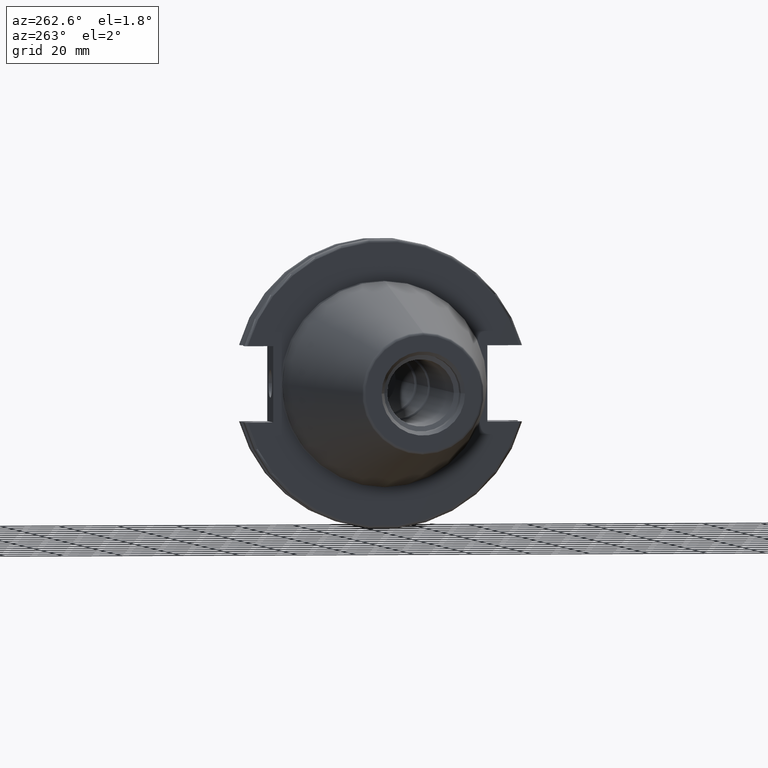
[diagram: clean part render]
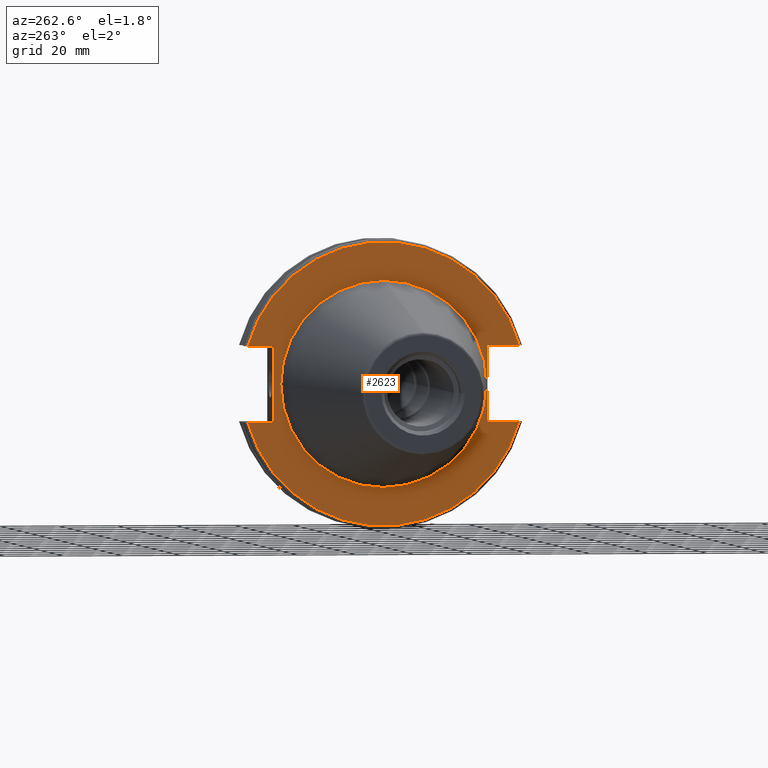
[diagram: same view with one face highlighted and labeled with its STEP entity id]
A machine part, auxiliary view. The second image highlights one B-rep face of the part: STEP entity #2623.
In plain terms, the highlighted planar face has unit normal (1, 0, 0).
Its self-contained STEP definition (entity closure, byte-faithful):
#697=CARTESIAN_POINT('',(3.175E0,0.E0,0.E0));
#698=DIRECTION('',(-1.E0,0.E0,0.E0));
#699=DIRECTION('',(0.E0,9.632228271525E-1,-2.687038988409E-1));
#700=AXIS2_PLACEMENT_3D('',#697,#698,#699);
#805=CARTESIAN_POINT('',(3.175E0,0.E0,0.E0));
#806=DIRECTION('',(-1.E0,0.E0,0.E0));
#807=DIRECTION('',(0.E0,-9.632228271525E-1,2.687038988409E-1));
#808=AXIS2_PLACEMENT_3D('',#805,#806,#807);
#810=DIRECTION('',(0.E0,-1.E0,0.E0));
#811=VECTOR('',#810,8.736201918762E0);
#812=CARTESIAN_POINT('',(3.175E0,4.643620191876E1,-1.2954E1));
#813=LINE('',#812,#811);
#814=DIRECTION('',(0.E0,0.E0,-1.E0));
#815=VECTOR('',#814,2.5908E1);
#816=CARTESIAN_POINT('',(3.175E0,3.77E1,1.2954E1));
#817=LINE('',#816,#815);
#818=DIRECTION('',(0.E0,-1.E0,0.E0));
#819=VECTOR('',#818,8.736201918762E0);
#820=CARTESIAN_POINT('',(3.175E0,4.643620191876E1,1.2954E1));
#821=LINE('',#820,#819);
#822=DIRECTION('',(0.E0,1.E0,0.E0));
#823=VECTOR('',#822,1.093620191876E1);
#824=CARTESIAN_POINT('',(3.175E0,-4.643620191876E1,1.2954E1));
#825=LINE('',#824,#823);
#826=DIRECTION('',(0.E0,0.E0,-1.E0));
#827=VECTOR('',#826,2.5908E1);
#828=CARTESIAN_POINT('',(3.175E0,-3.55E1,1.2954E1));
#829=LINE('',#828,#827);
#830=DIRECTION('',(0.E0,1.E0,0.E0));
#831=VECTOR('',#830,1.093620191876E1);
#832=CARTESIAN_POINT('',(3.175E0,-4.643620191876E1,-1.2954E1));
#833=LINE('',#832,#831);
#834=CARTESIAN_POINT('',(3.175E0,0.E0,0.E0));
#835=DIRECTION('',(1.E0,0.E0,0.E0));
#836=DIRECTION('',(0.E0,0.E0,1.E0));
#837=AXIS2_PLACEMENT_3D('',#834,#835,#836);
#839=CARTESIAN_POINT('',(3.175E0,0.E0,0.E0));
#840=DIRECTION('',(1.E0,0.E0,0.E0));
#841=DIRECTION('',(0.E0,0.E0,-1.E0));
#842=AXIS2_PLACEMENT_3D('',#839,#840,#841);
#1152=CARTESIAN_POINT('',(3.175E0,3.77E1,1.2954E1));
#1153=CARTESIAN_POINT('',(3.175E0,3.77E1,-1.2954E1));
#1154=VERTEX_POINT('',#1152);
#1155=VERTEX_POINT('',#1153);
#1174=CARTESIAN_POINT('',(3.175E0,-3.55E1,1.2954E1));
#1175=CARTESIAN_POINT('',(3.175E0,-3.55E1,-1.2954E1));
#1176=VERTEX_POINT('',#1174);
#1177=VERTEX_POINT('',#1175);
#1204=CARTESIAN_POINT('',(3.175E0,4.643620191876E1,-1.2954E1));
#1205=CARTESIAN_POINT('',(3.175E0,-4.643620191876E1,-1.2954E1));
#1206=VERTEX_POINT('',#1204);
#1207=VERTEX_POINT('',#1205);
#1212=CARTESIAN_POINT('',(3.175E0,-4.643620191876E1,1.2954E1));
#1213=CARTESIAN_POINT('',(3.175E0,4.643620191876E1,1.2954E1));
#1214=VERTEX_POINT('',#1212);
#1215=VERTEX_POINT('',#1213);
#1256=CARTESIAN_POINT('',(3.175E0,1.990201835044E-14,3.51282E1));
#1257=CARTESIAN_POINT('',(3.175E0,0.E0,-3.51282E1));
#1258=VERTEX_POINT('',#1256);
#1259=VERTEX_POINT('',#1257);
#2599=CARTESIAN_POINT('',(3.175E0,0.E0,0.E0));
#2600=DIRECTION('',(1.E0,0.E0,0.E0));
#2601=DIRECTION('',(0.E0,0.E0,1.E0));
#2602=AXIS2_PLACEMENT_3D('',#2599,#2600,#2601);
#2603=PLANE('',#2602);
#2604=ORIENTED_EDGE('',*,*,#2462,.F.);
#2606=ORIENTED_EDGE('',*,*,#2605,.T.);
#2608=ORIENTED_EDGE('',*,*,#2607,.F.);
#2610=ORIENTED_EDGE('',*,*,#2609,.F.);
#2611=ORIENTED_EDGE('',*,*,#2592,.F.);
#2612=ORIENTED_EDGE('',*,*,#2580,.T.);
#2613=ORIENTED_EDGE('',*,*,#2416,.T.);
#2614=ORIENTED_EDGE('',*,*,#2430,.F.);
#2615=EDGE_LOOP('',(#2604,#2606,#2608,#2610,#2611,#2612,#2613,#2614));
#2616=FACE_OUTER_BOUND('',#2615,.F.);
#2618=ORIENTED_EDGE('',*,*,#2617,.F.);
#2620=ORIENTED_EDGE('',*,*,#2619,.F.);
#2621=EDGE_LOOP('',(#2618,#2620));
#2622=FACE_BOUND('',#2621,.F.);
#2623=ADVANCED_FACE('',(#2616,#2622),#2603,.F.);
#701=CIRCLE('',#700,4.82092E1);
#809=CIRCLE('',#808,4.82092E1);
#838=CIRCLE('',#837,3.51282E1);
#843=CIRCLE('',#842,3.51282E1);
#2416=EDGE_CURVE('',#1176,#1177,#829,.T.);
#2430=EDGE_CURVE('',#1207,#1177,#833,.T.);
#2462=EDGE_CURVE('',#1206,#1207,#701,.T.);
#2580=EDGE_CURVE('',#1214,#1176,#825,.T.);
#2592=EDGE_CURVE('',#1214,#1215,#809,.T.);
#2605=EDGE_CURVE('',#1206,#1155,#813,.T.);
#2607=EDGE_CURVE('',#1154,#1155,#817,.T.);
#2609=EDGE_CURVE('',#1215,#1154,#821,.T.);
#2617=EDGE_CURVE('',#1258,#1259,#838,.T.);
#2619=EDGE_CURVE('',#1259,#1258,#843,.T.);